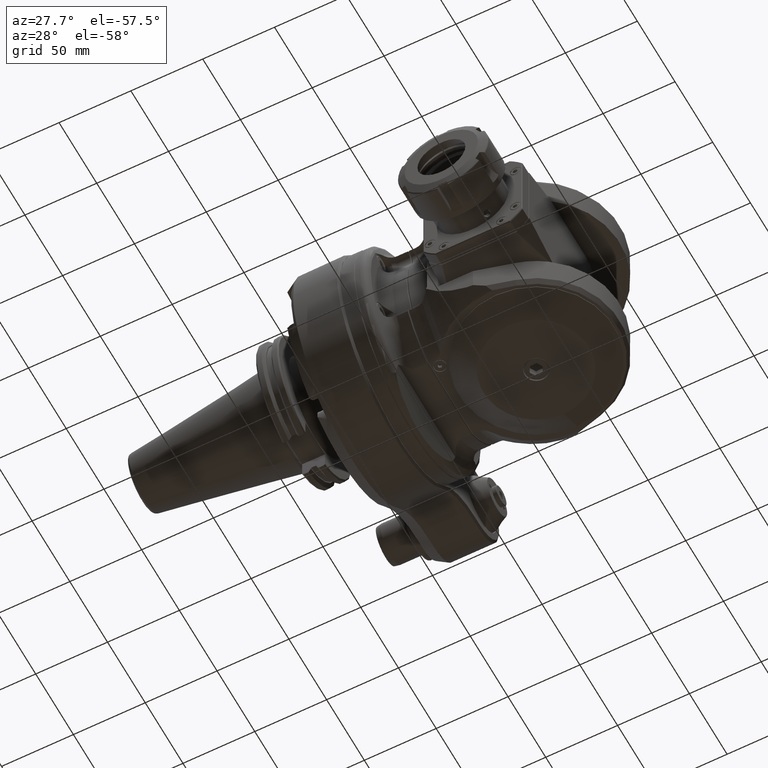
[diagram: clean part render]
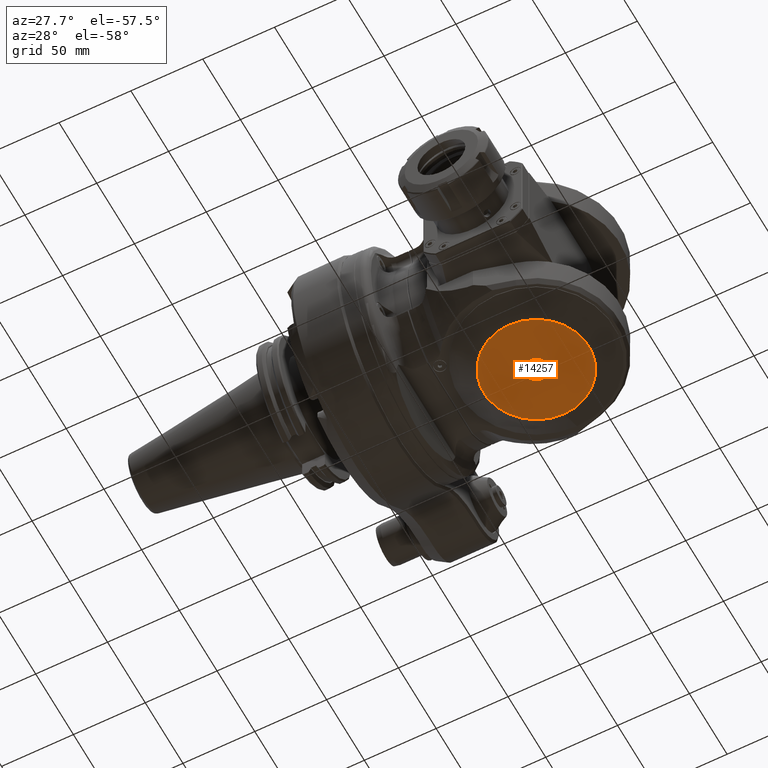
[diagram: same view with one face highlighted and labeled with its STEP entity id]
A machine part, auxiliary view. The second image highlights one B-rep face of the part: STEP entity #14257.
In plain terms, the highlighted planar face has unit normal (0, -0, 1).
Its self-contained STEP definition (entity closure, byte-faithful):
#294=FACE_BOUND('',#2621,.T.);
#605=PLANE('',#15529);
#1698=FACE_OUTER_BOUND('',#2620,.T.);
#2620=EDGE_LOOP('',(#11461));
#2621=EDGE_LOOP('',(#11462));
#5395=CIRCLE('',#15528,36.67949192431);
#5396=CIRCLE('',#15530,8.25);
#6493=VERTEX_POINT('',#24854);
#6494=VERTEX_POINT('',#24858);
#8259=EDGE_CURVE('',#6493,#6493,#5395,.T.);
#8260=EDGE_CURVE('',#6494,#6494,#5396,.T.);
#11461=ORIENTED_EDGE('',*,*,#8259,.T.);
#11462=ORIENTED_EDGE('',*,*,#8260,.T.);
#14257=ADVANCED_FACE('',(#1698,#294),#605,.F.);
#15528=AXIS2_PLACEMENT_3D('',#24856,#18382,#18383);
#15529=AXIS2_PLACEMENT_3D('',#24857,#18384,#18385);
#15530=AXIS2_PLACEMENT_3D('',#24859,#18386,#18387);
#18382=DIRECTION('center_axis',(-1.,0.,0.));
#18383=DIRECTION('ref_axis',(0.,0.,-1.));
#18384=DIRECTION('center_axis',(1.,0.,0.));
#18385=DIRECTION('ref_axis',(0.,0.,1.));
#18386=DIRECTION('center_axis',(1.,0.,0.));
#18387=DIRECTION('ref_axis',(0.,0.,-1.));
#24854=CARTESIAN_POINT('',(-68.5,1.572164335818E-14,-36.67949192431));
#24856=CARTESIAN_POINT('Origin',(-68.5,0.,0.));
#24857=CARTESIAN_POINT('Origin',(-68.5,0.,-22.46474596216));
#24858=CARTESIAN_POINT('',(-68.5,0.,8.25));
#24859=CARTESIAN_POINT('Origin',(-68.5,0.,0.));